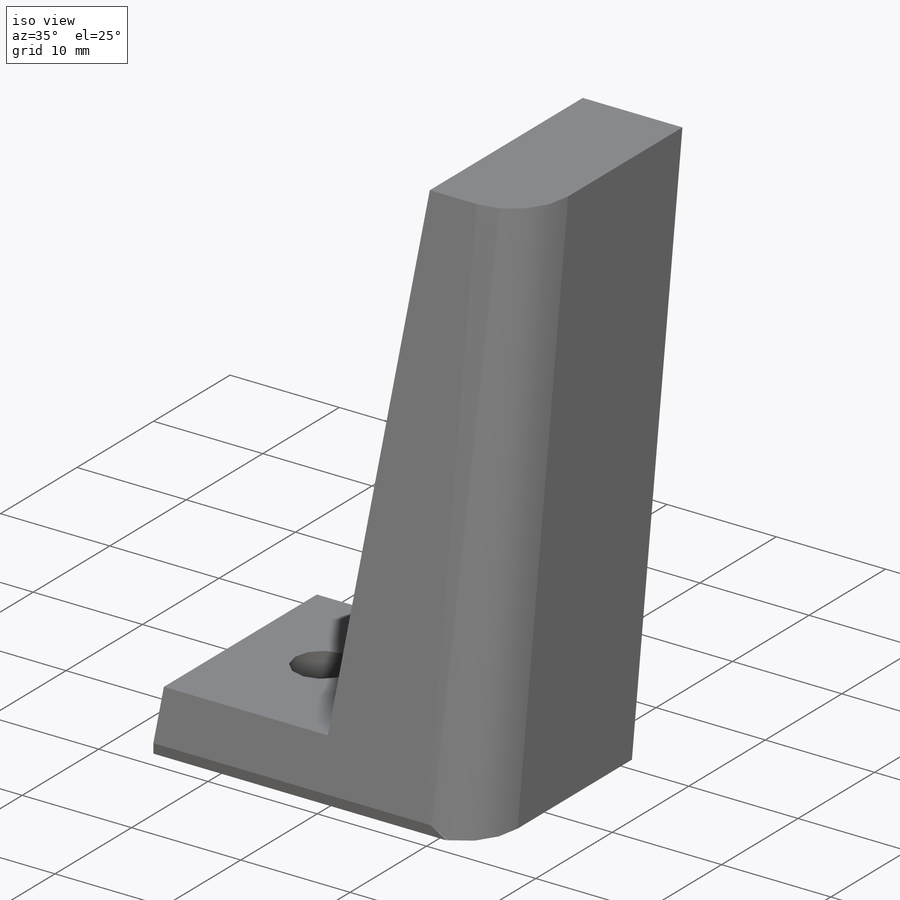
[diagram: iso view]
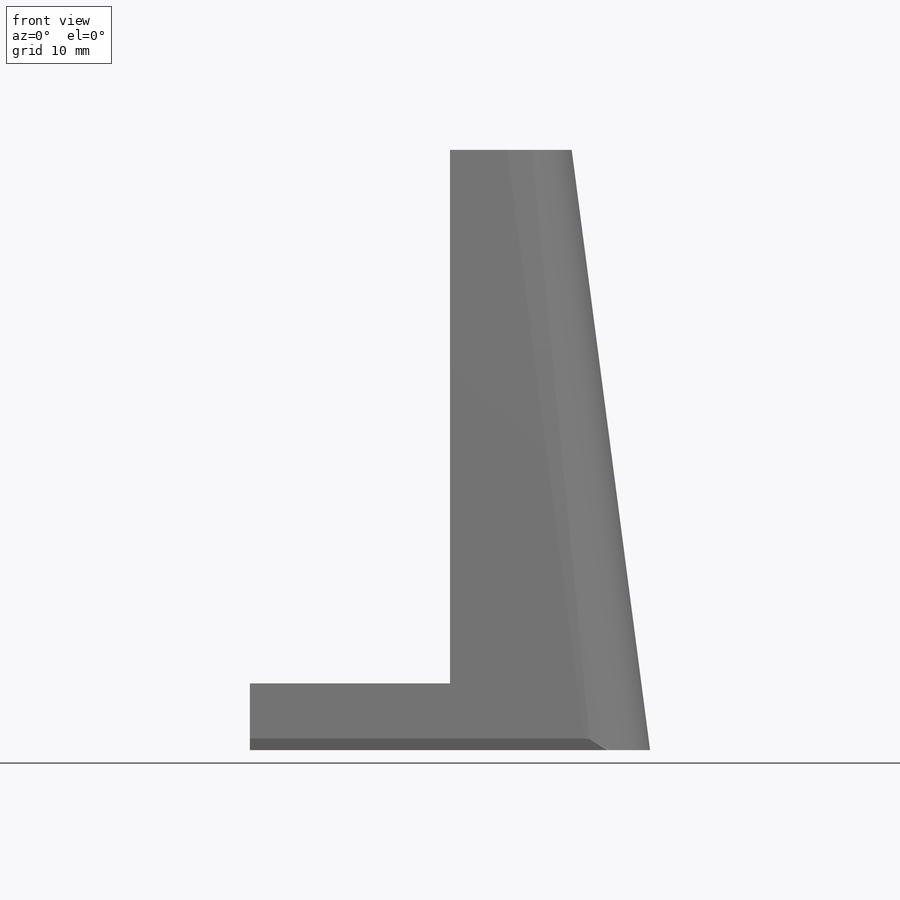
[diagram: front view]
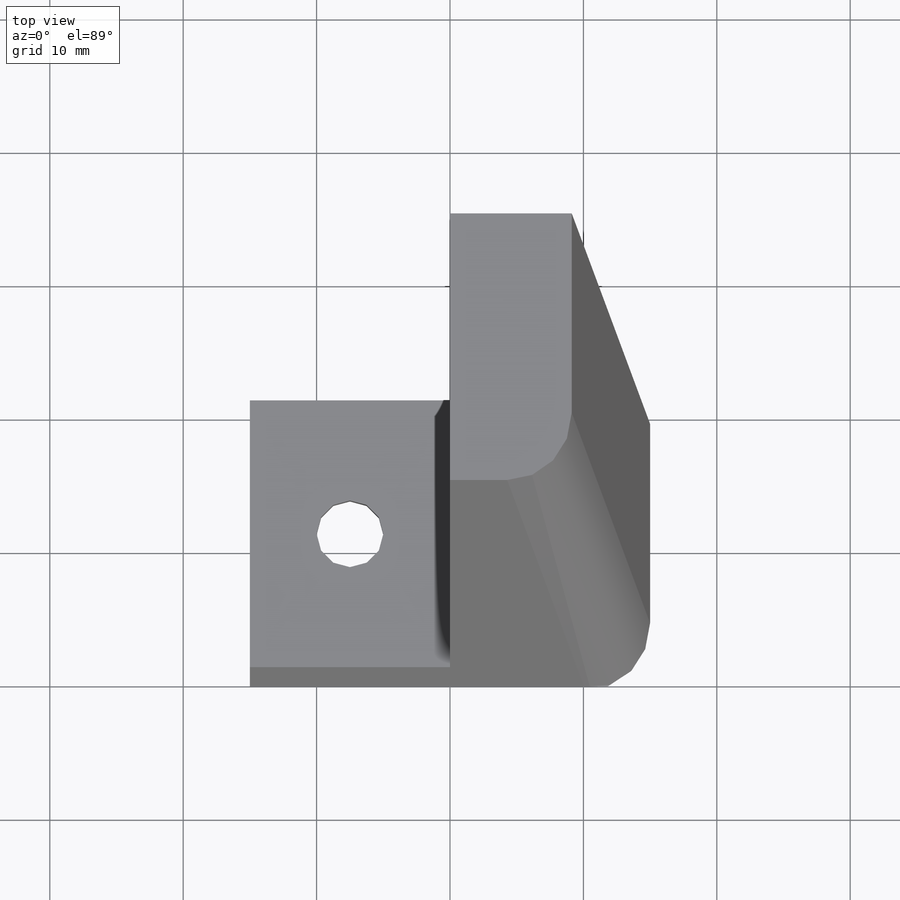
[diagram: top view]
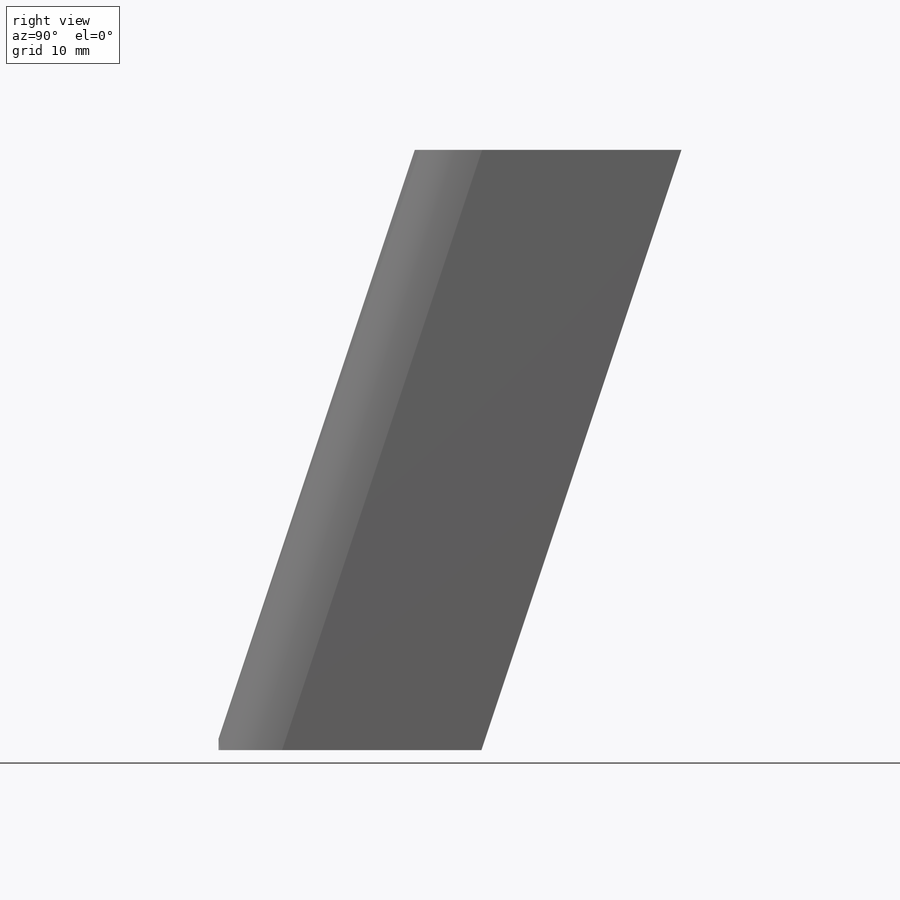
[diagram: right view]
SOLIDWORKS PART (.sldprt)
format: sldprt  version: not decoded by parser v0  size: 291,328 bytes
history: native  units: mm
features: sketch x5, plane x3, extrude x2, cut_extrude x2, material x1, fillet x1 (+10 scaffold rows collapsed)
feature tree (24):
  scaffold x10  (default folders/planes/origin — collapsed)
  material  "Материал <не указан>"
  plane  "Спереди"
  plane  "Сверху"
  plane  "Справа"
  sketch  "Эскиз1"  dims[D1=90.0mm D2=90.0mm D3=45.0mm D4=45.0mm]
  sketch  "Эскиз2"  dims[c1.D1=45.0mm c2.D1=~82.561788deg c2.D2=45.0mm c2.D3=45.0mm c3.D3=~82.561788deg c3.D1=45.0mm c3.D2=39.125mm c3.D4=20.0mm c3.D5=45.0mm c3.D6=14.125mm c4.D1=39.125mm c4.D2=45.0mm c4.D3=45.0mm c4.D4=15.0mm c4.D5=30.0mm c4.D6=45.0mm c4.D7=45.0mm c5.D7=~82.561788deg]
  extrude  "Бобышка-Вытянуть1"  Depth=50mm
  sketch  "Эскиз4"  dims[c1.D1=15.0mm c2.D1=~71.565051deg c2.D2=~46.370419mm c3.D2=71.57deg c3.D3=30.0mm c3.D4=45.0mm c3.D5=20.0mm c3.D6=~19.995681mm c4.D3=~19.995681mm c4.D6=45.0mm c4.D1=~47.434165mm c5.D1=~71.565051deg c5.D2=45.0mm c6.D2=71.57deg c6.D4=45.0mm c6.D6=~30.28897mm c6.D7=~50.28897mm c7.D6=~30.28897mm c7.D8=~15.293289mm c7.D7=~15.293289mm c8.D6=~15.293289mm c8.D7=~30.28897mm c8.D8=45.0mm]
  cut_extrude  "Вырез-Вытянуть3"  Depth=58mm
  sketch  "Эскиз5"  dims[D1=~19.99952mm]
  extrude  "Бобышка-Вытянуть2"  Depth=15mm
  fillet  "Скругление1"  Radius=5mm
  sketch  "Эскиз6"  dims[D1=~4.467449mm]
  cut_extrude  "Вырез-Вытянуть4"  Depth=15mm
decode coverage: 10 of 10 modeling features carry decoded parameters
note: ~ marks probable driven/reference dimensions
note: suppression state not decoded; provenance and decode notes live in map.json
